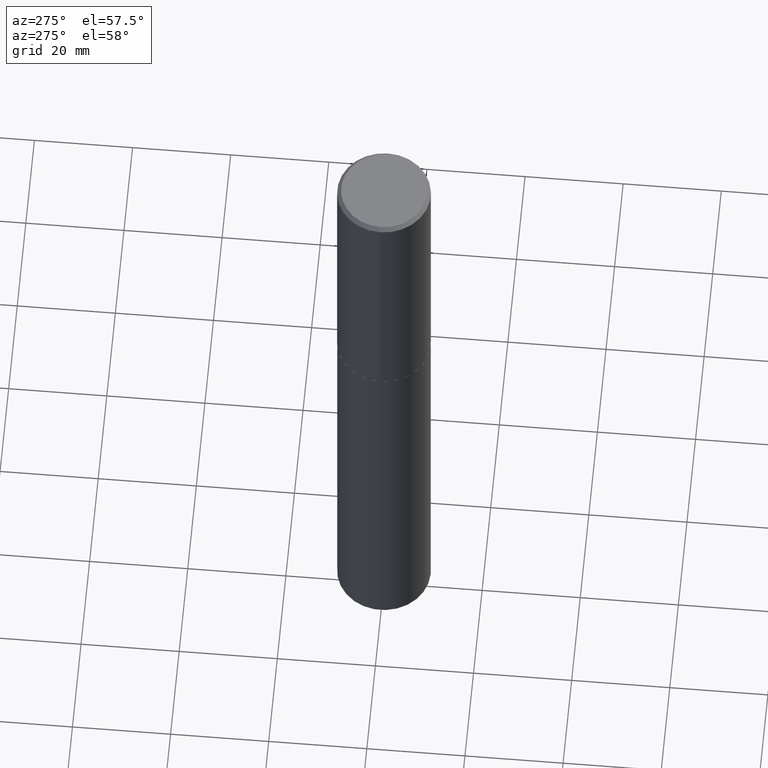
[diagram: clean part render]
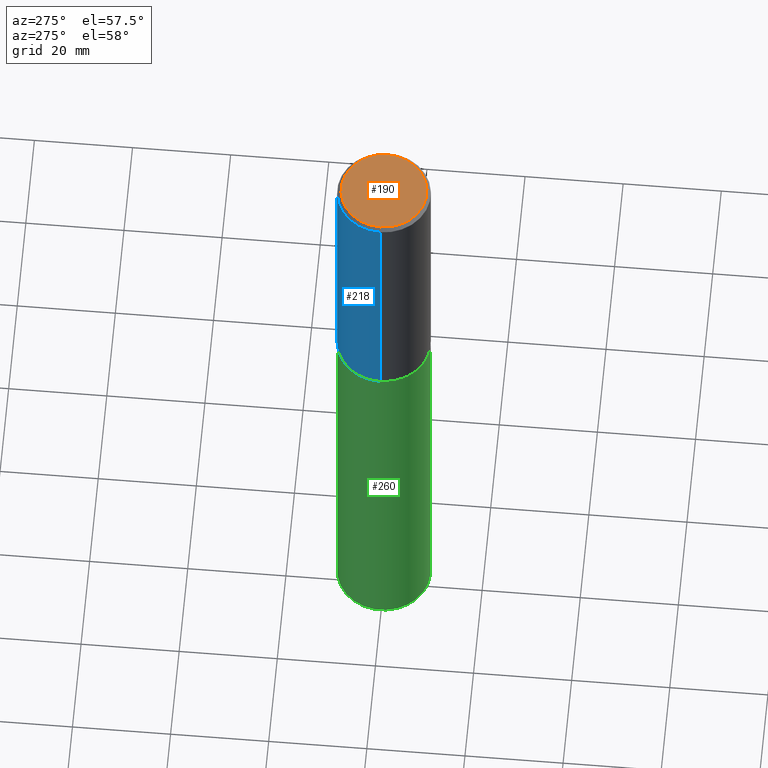
[diagram: same view with three faces highlighted in distinct colors, each labeled with its STEP entity id]
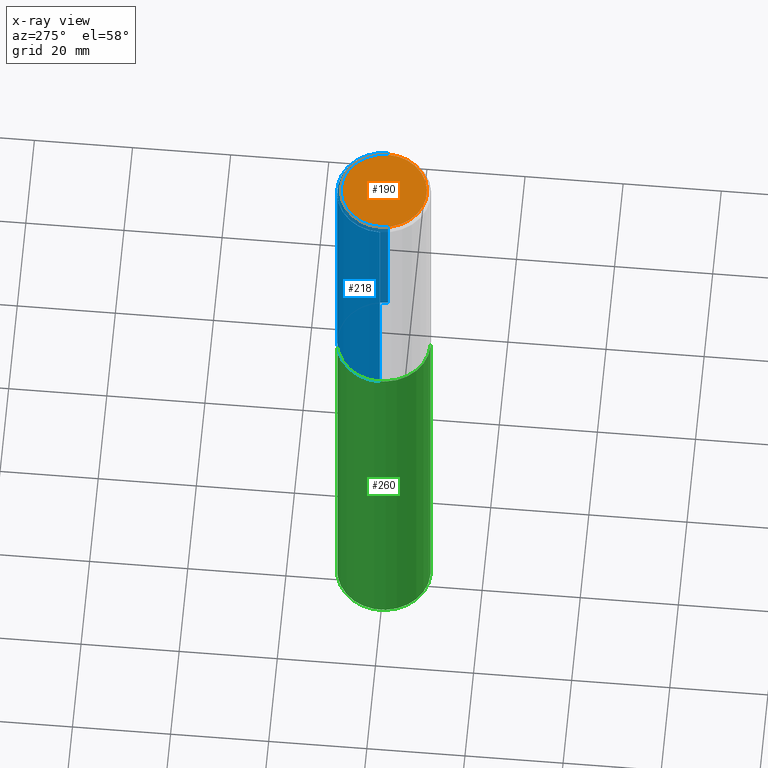
[diagram: x-ray of the same camera — body ghosted, the three highlighted faces saturated]
A machine part, auxiliary view with three faces highlighted in distinct colors.
The next image is the same camera in x-ray (body ghosted, the three faces saturated) — at least one of them is partly hidden behind the body in this view.
Their STEP definitions:

[orange] entity #190 — the highlighted planar face has unit normal (0, -0, -1).
#56 = ORIENTED_EDGE ( 'NONE', *, *, #74, .T. ) ;
#74 = EDGE_CURVE ( 'NONE', #305, #208, #258, .T. ) ;
#89 = CIRCLE ( 'NONE', #319, 0.3437500000000000555 ) ;
#121 = CARTESIAN_POINT ( 'NONE',  ( -4.679430540483313312E-47, 6.680986634214007402E-33, 1.913510623667735534E-18 ) ) ;
#124 = CARTESIAN_POINT ( 'NONE',  ( -9.358861080966626623E-47, 1.336197326842801480E-32, 3.827021247335471069E-18 ) ) ;
#132 = EDGE_CURVE ( 'NONE', #208, #305, #89, .T. ) ;
#149 = DIRECTION ( 'NONE',  ( 2.438088387897960049E-29, -3.491481338843145188E-15, -1.000000000000000000 ) ) ;
#155 = PLANE ( 'NONE',  #188 ) ;
#160 = AXIS2_PLACEMENT_3D ( 'NONE', #124, #353, #231 ) ;
#188 = AXIS2_PLACEMENT_3D ( 'NONE', #121, #149, #246 ) ;
#190 = ADVANCED_FACE ( 'NONE', ( #250 ), #155, .F. ) ;
#208 = VERTEX_POINT ( 'NONE', #301 ) ;
#231 = DIRECTION ( 'NONE',  ( 1.000000000000000000, -6.982962677686265922E-15, 4.876173381029099482E-29 ) ) ;
#240 = CARTESIAN_POINT ( 'NONE',  ( 0.3437500000000000555, -2.520045863868569100E-15, 3.827021247352675786E-18 ) ) ;
#243 = EDGE_LOOP ( 'NONE', ( #334, #56 ) ) ;
#246 = DIRECTION ( 'NONE',  ( -1.000000000000000000, 6.982962677686265922E-15, -4.876176775795935793E-29 ) ) ;
#250 = FACE_OUTER_BOUND ( 'NONE', #243, .T. ) ;
#258 = CIRCLE ( 'NONE', #160, 0.3437500000000000555 ) ;
#265 = DIRECTION ( 'NONE',  ( 1.000000000000000000, -6.982962677686265922E-15, 4.876173381029099482E-29 ) ) ;
#291 = CARTESIAN_POINT ( 'NONE',  ( -9.358861080966626623E-47, 1.336197326842801480E-32, 3.827021247335471069E-18 ) ) ;
#293 = DIRECTION ( 'NONE',  ( -2.445468806185136597E-29, 3.491481338843145583E-15, 1.000000000000000000 ) ) ;
#301 = CARTESIAN_POINT ( 'NONE',  ( -0.3437500000000000555, 2.454947816374077943E-15, 3.827021247318493611E-18 ) ) ;
#305 = VERTEX_POINT ( 'NONE', #240 ) ;
#319 = AXIS2_PLACEMENT_3D ( 'NONE', #291, #293, #265 ) ;
#334 = ORIENTED_EDGE ( 'NONE', *, *, #132, .T. ) ;
#353 = DIRECTION ( 'NONE',  ( -2.445468806185136597E-29, 3.491481338843145583E-15, 1.000000000000000000 ) ) ;

[blue] entity #218 — the highlighted cylindrical surface (partial cylindrical patch) has radius 9.525 mm, axis along (-0, 0, 1).
#1 = DIRECTION ( 'NONE',  ( 1.000000000000000000, -6.982962677686265922E-15, 4.876176775795935793E-29 ) ) ;
#8 = CIRCLE ( 'NONE', #365, 0.3750000000000002220 ) ;
#20 = EDGE_CURVE ( 'NONE', #212, #274, #8, .T. ) ;
#24 = CARTESIAN_POINT ( 'NONE',  ( 0.3750000000000002220, -1.047269827586000775E-14, -2.249499999999999389 ) ) ;
#46 = CARTESIAN_POINT ( 'NONE',  ( 0.3750000000000001110, -2.618611004132350411E-15, 1.828566290923476483E-29 ) ) ;
#51 = LINE ( 'NONE', #261, #355 ) ;
#57 = CARTESIAN_POINT ( 'NONE',  ( -0.3750000000000000555, -1.317062772682874959E-15, -0.03125000000000015959 ) ) ;
#58 = AXIS2_PLACEMENT_3D ( 'NONE', #387, #113, #1 ) ;
#62 = DIRECTION ( 'NONE',  ( 1.000000000000000000, -6.982962677686269077E-15, 0.000000000000000000 ) ) ;
#77 = CIRCLE ( 'NONE', #325, 0.3750000000000000555 ) ;
#79 = EDGE_CURVE ( 'NONE', #212, #179, #322, .T. ) ;
#91 = DIRECTION ( 'NONE',  ( -2.445468806185136597E-29, 3.491481338843145583E-15, 1.000000000000000000 ) ) ;
#108 = DIRECTION ( 'NONE',  ( -2.445468806185136877E-29, 3.491481338843145188E-15, 1.000000000000000000 ) ) ;
#113 = DIRECTION ( 'NONE',  ( -2.445468806185136597E-29, 3.491481338843145583E-15, 1.000000000000000000 ) ) ;
#140 = CARTESIAN_POINT ( 'NONE',  ( 7.642090019328590401E-31, -1.091087918388488418E-16, -0.03125000000000015959 ) ) ;
#145 = CARTESIAN_POINT ( 'NONE',  ( -0.3750000000000002220, -5.189552012627277303E-15, -2.249499999999999389 ) ) ;
#169 = EDGE_CURVE ( 'NONE', #274, #267, #51, .T. ) ;
#179 = VERTEX_POINT ( 'NONE', #311 ) ;
#189 = ORIENTED_EDGE ( 'NONE', *, *, #79, .F. ) ;
#199 = VECTOR ( 'NONE', #290, 39.37007874015748143 ) ;
#212 = VERTEX_POINT ( 'NONE', #24 ) ;
#218 = ADVANCED_FACE ( 'NONE', ( #357 ), #337, .T. ) ;
#261 = CARTESIAN_POINT ( 'NONE',  ( -0.3750000000000001110, 2.664535259100376486E-15, -1.844600658845590159E-29 ) ) ;
#266 = DIRECTION ( 'NONE',  ( 1.000000000000000000, -6.982962677686265922E-15, 0.000000000000000000 ) ) ;
#267 = VERTEX_POINT ( 'NONE', #57 ) ;
#271 = ORIENTED_EDGE ( 'NONE', *, *, #20, .T. ) ;
#274 = VERTEX_POINT ( 'NONE', #145 ) ;
#281 = ORIENTED_EDGE ( 'NONE', *, *, #294, .F. ) ;
#290 = DIRECTION ( 'NONE',  ( -2.445468806185136877E-29, 3.491481338843145188E-15, 1.000000000000000000 ) ) ;
#294 = EDGE_CURVE ( 'NONE', #179, #267, #77, .T. ) ;
#296 = ORIENTED_EDGE ( 'NONE', *, *, #169, .T. ) ;
#307 = EDGE_LOOP ( 'NONE', ( #271, #296, #281, #189 ) ) ;
#311 = CARTESIAN_POINT ( 'NONE',  ( 0.3750000000000000555, -2.727719795971198723E-15, -0.03125000000000015959 ) ) ;
#322 = LINE ( 'NONE', #46, #199 ) ;
#325 = AXIS2_PLACEMENT_3D ( 'NONE', #140, #330, #266 ) ;
#330 = DIRECTION ( 'NONE',  ( -2.445468806185136597E-29, 3.491481338843145583E-15, 1.000000000000000000 ) ) ;
#337 = CYLINDRICAL_SURFACE ( 'NONE', #58, 0.3750000000000001110 ) ;
#355 = VECTOR ( 'NONE', #108, 39.37007874015748143 ) ;
#357 = FACE_OUTER_BOUND ( 'NONE', #307, .T. ) ;
#361 = CARTESIAN_POINT ( 'NONE',  ( 5.501082079513463420E-29, -7.854087271727654578E-15, -2.249499999999999389 ) ) ;
#365 = AXIS2_PLACEMENT_3D ( 'NONE', #361, #91, #62 ) ;
#387 = CARTESIAN_POINT ( 'NONE',  ( 0.000000000000000000, 0.000000000000000000, 0.000000000000000000 ) ) ;

[green] entity #260 — the highlighted cylindrical surface (partial cylindrical patch) has radius 9.525 mm, axis along (-0, 0, 1).
#6 = VERTEX_POINT ( 'NONE', #344 ) ;
#7 = VERTEX_POINT ( 'NONE', #148 ) ;
#21 = CARTESIAN_POINT ( 'NONE',  ( -2.618611004132295191E-15, -0.3750000000000078826, -2.249999999999998224 ) ) ;
#28 = AXIS2_PLACEMENT_3D ( 'NONE', #333, #332, #59 ) ;
#29 = FACE_OUTER_BOUND ( 'NONE', #364, .T. ) ;
#30 = CARTESIAN_POINT ( 'NONE',  ( 1.381670510912354609E-28, -1.972378335700664578E-14, -5.649519052838330779 ) ) ;
#31 = EDGE_CURVE ( 'NONE', #6, #7, #324, .T. ) ;
#38 = ORIENTED_EDGE ( 'NONE', *, *, #285, .T. ) ;
#59 = DIRECTION ( 'NONE',  ( -6.982962677686265922E-15, -1.000000000000000000, 3.642463991552350169E-15 ) ) ;
#71 = ORIENTED_EDGE ( 'NONE', *, *, #338, .F. ) ;
#95 = VERTEX_POINT ( 'NONE', #284 ) ;
#115 = ORIENTED_EDGE ( 'NONE', *, *, #164, .T. ) ;
#135 = CARTESIAN_POINT ( 'NONE',  ( 2.664535259100513353E-15, 0.3749999999999801825, -5.649519052838331667 ) ) ;
#144 = CIRCLE ( 'NONE', #378, 0.3750000000000000555 ) ;
#148 = CARTESIAN_POINT ( 'NONE',  ( -2.618611004132295191E-15, -0.3750000000000078826, -2.249999999999998224 ) ) ;
#156 = DIRECTION ( 'NONE',  ( -6.982962677686265922E-15, -1.000000000000000000, 3.642463991552350169E-15 ) ) ;
#164 = EDGE_CURVE ( 'NONE', #95, #7, #232, .T. ) ;
#170 = DIRECTION ( 'NONE',  ( -2.445757816319670673E-29, 3.491067459881058127E-15, 1.000000000000000000 ) ) ;
#191 = ORIENTED_EDGE ( 'NONE', *, *, #31, .F. ) ;
#200 = VECTOR ( 'NONE', #170, 39.37007874015748143 ) ;
#213 = CYLINDRICAL_SURFACE ( 'NONE', #28, 0.3750000000000000555 ) ;
#232 = LINE ( 'NONE', #21, #313 ) ;
#234 = CARTESIAN_POINT ( 'NONE',  ( 2.664535259100430128E-15, 0.3749999999999921729, -2.250000000000001332 ) ) ;
#248 = CARTESIAN_POINT ( 'NONE',  ( 5.502304813916556222E-29, -7.855833012397076871E-15, -2.249999999999999556 ) ) ;
#260 = ADVANCED_FACE ( 'NONE', ( #29 ), #213, .T. ) ;
#273 = DIRECTION ( 'NONE',  ( -2.445757816319670673E-29, 3.491067459881057732E-15, 1.000000000000000000 ) ) ;
#284 = CARTESIAN_POINT ( 'NONE',  ( -2.618611004132210783E-15, -0.3750000000000196509, -5.649519052838329003 ) ) ;
#285 = EDGE_CURVE ( 'NONE', #336, #95, #144, .T. ) ;
#297 = AXIS2_PLACEMENT_3D ( 'NONE', #248, #339, #156 ) ;
#313 = VECTOR ( 'NONE', #373, 39.37007874015748143 ) ;
#324 = CIRCLE ( 'NONE', #297, 0.3750000000000000555 ) ;
#332 = DIRECTION ( 'NONE',  ( -2.445757816319670673E-29, 3.491067459881057732E-15, 1.000000000000000000 ) ) ;
#333 = CARTESIAN_POINT ( 'NONE',  ( 5.502304813916556222E-29, -7.855833012397076871E-15, -2.249999999999999556 ) ) ;
#336 = VERTEX_POINT ( 'NONE', #135 ) ;
#338 = EDGE_CURVE ( 'NONE', #336, #6, #374, .T. ) ;
#339 = DIRECTION ( 'NONE',  ( -2.445757816319670673E-29, 3.491067459881057732E-15, 1.000000000000000000 ) ) ;
#344 = CARTESIAN_POINT ( 'NONE',  ( 2.664535259100514142E-15, 0.3749999999999921729, -2.250000000000001332 ) ) ;
#352 = DIRECTION ( 'NONE',  ( -6.982962677686265922E-15, -1.000000000000000000, 2.913971193241880372E-15 ) ) ;
#364 = EDGE_LOOP ( 'NONE', ( #71, #38, #115, #191 ) ) ;
#373 = DIRECTION ( 'NONE',  ( -2.445757816319670673E-29, 3.491067459881058127E-15, 1.000000000000000000 ) ) ;
#374 = LINE ( 'NONE', #234, #200 ) ;
#378 = AXIS2_PLACEMENT_3D ( 'NONE', #30, #273, #352 ) ;